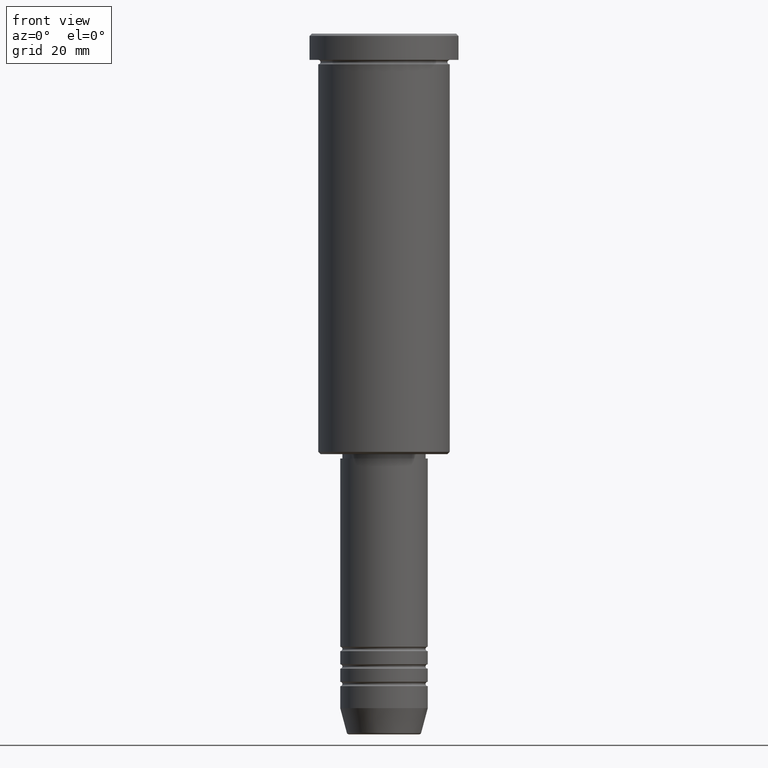
[diagram: clean part render]
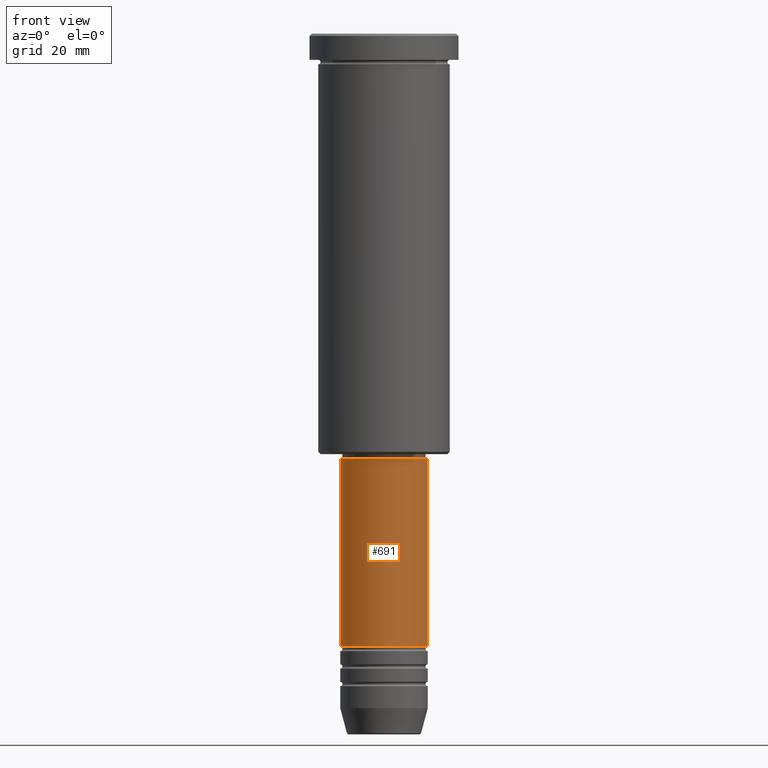
[diagram: same view with one face highlighted and labeled with its STEP entity id]
A machine part, front view. The second image highlights one B-rep face of the part: STEP entity #691.
In plain terms, the highlighted cylindrical surface (partial cylindrical patch) has radius 10 mm, axis along (-0, -0, 1).
Its self-contained STEP definition (entity closure, byte-faithful):
#61 = CIRCLE ( 'NONE', #296, 9.999999999999998224 ) ;
#65 = DIRECTION ( 'NONE',  ( -0.000000000000000000, -0.000000000000000000, 1.000000000000000000 ) ) ;
#75 = CYLINDRICAL_SURFACE ( 'NONE', #550, 10.00000000000000000 ) ;
#119 = LINE ( 'NONE', #768, #198 ) ;
#135 = LINE ( 'NONE', #974, #257 ) ;
#148 = CARTESIAN_POINT ( 'NONE',  ( 0.000000000000000000, 0.000000000000000000, -97.00000000000002842 ) ) ;
#157 = ORIENTED_EDGE ( 'NONE', *, *, #184, .T. ) ;
#184 = EDGE_CURVE ( 'NONE', #810, #558, #952, .T. ) ;
#198 = VECTOR ( 'NONE', #1142, 1000.000000000000000 ) ;
#257 = VECTOR ( 'NONE', #1057, 1000.000000000000000 ) ;
#273 = EDGE_LOOP ( 'NONE', ( #1035, #157, #748, #662 ) ) ;
#296 = AXIS2_PLACEMENT_3D ( 'NONE', #148, #65, #822 ) ;
#341 = DIRECTION ( 'NONE',  ( 1.000000000000000000, 0.000000000000000000, 0.000000000000000000 ) ) ;
#437 = CARTESIAN_POINT ( 'NONE',  ( 0.000000000000000000, 0.000000000000000000, -139.9999999999999716 ) ) ;
#476 = CARTESIAN_POINT ( 'NONE',  ( -10.00000000000000178, 1.224646799147353454E-15, -139.9999999999999716 ) ) ;
#494 = VERTEX_POINT ( 'NONE', #964 ) ;
#514 = EDGE_CURVE ( 'NONE', #558, #549, #135, .T. ) ;
#539 = EDGE_CURVE ( 'NONE', #810, #494, #119, .T. ) ;
#549 = VERTEX_POINT ( 'NONE', #778 ) ;
#550 = AXIS2_PLACEMENT_3D ( 'NONE', #1149, #611, #630 ) ;
#558 = VERTEX_POINT ( 'NONE', #957 ) ;
#611 = DIRECTION ( 'NONE',  ( -0.000000000000000000, -0.000000000000000000, 1.000000000000000000 ) ) ;
#630 = DIRECTION ( 'NONE',  ( 1.000000000000000000, 0.000000000000000000, 0.000000000000000000 ) ) ;
#662 = ORIENTED_EDGE ( 'NONE', *, *, #670, .F. ) ;
#670 = EDGE_CURVE ( 'NONE', #494, #549, #61, .T. ) ;
#691 = ADVANCED_FACE ( 'NONE', ( #1062 ), #75, .T. ) ;
#748 = ORIENTED_EDGE ( 'NONE', *, *, #514, .T. ) ;
#768 = CARTESIAN_POINT ( 'NONE',  ( -10.00000000000000000, 1.224646799147353256E-15, 0.000000000000000000 ) ) ;
#778 = CARTESIAN_POINT ( 'NONE',  ( 9.999999999999998224, 0.000000000000000000, -97.00000000000002842 ) ) ;
#810 = VERTEX_POINT ( 'NONE', #476 ) ;
#822 = DIRECTION ( 'NONE',  ( 1.000000000000000000, 0.000000000000000000, 0.000000000000000000 ) ) ;
#952 = CIRCLE ( 'NONE', #1167, 10.00000000000000178 ) ;
#957 = CARTESIAN_POINT ( 'NONE',  ( 10.00000000000000178, 0.000000000000000000, -139.9999999999999716 ) ) ;
#964 = CARTESIAN_POINT ( 'NONE',  ( -9.999999999999998224, 1.224646799147353256E-15, -97.00000000000002842 ) ) ;
#974 = CARTESIAN_POINT ( 'NONE',  ( 10.00000000000000000, 0.000000000000000000, 0.000000000000000000 ) ) ;
#1035 = ORIENTED_EDGE ( 'NONE', *, *, #539, .F. ) ;
#1057 = DIRECTION ( 'NONE',  ( -0.000000000000000000, -0.000000000000000000, 1.000000000000000000 ) ) ;
#1062 = FACE_OUTER_BOUND ( 'NONE', #273, .T. ) ;
#1090 = DIRECTION ( 'NONE',  ( -0.000000000000000000, -0.000000000000000000, 1.000000000000000000 ) ) ;
#1142 = DIRECTION ( 'NONE',  ( -0.000000000000000000, -0.000000000000000000, 1.000000000000000000 ) ) ;
#1149 = CARTESIAN_POINT ( 'NONE',  ( 0.000000000000000000, 0.000000000000000000, 0.000000000000000000 ) ) ;
#1167 = AXIS2_PLACEMENT_3D ( 'NONE', #437, #1090, #341 ) ;